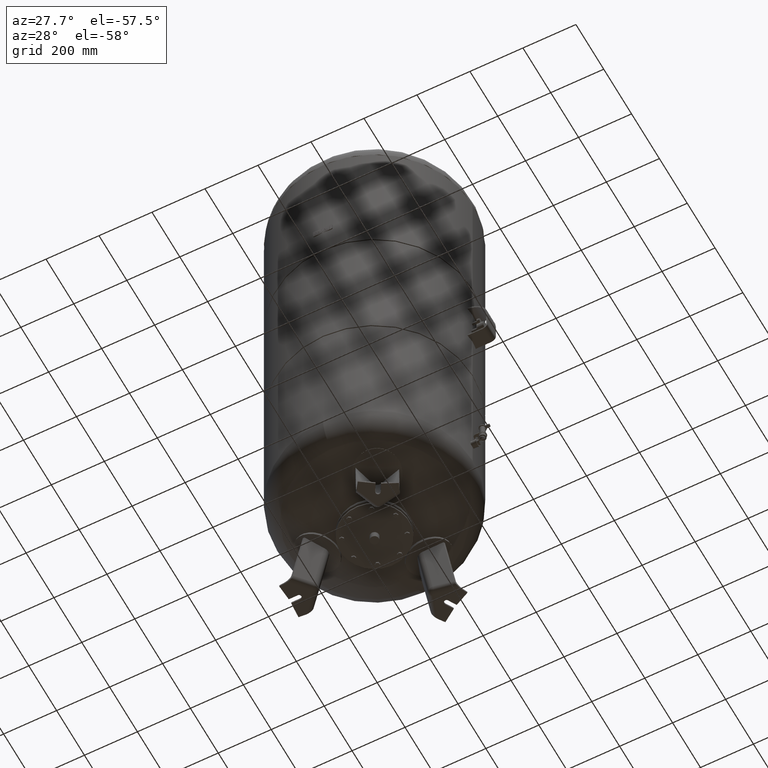
[diagram: clean part render]
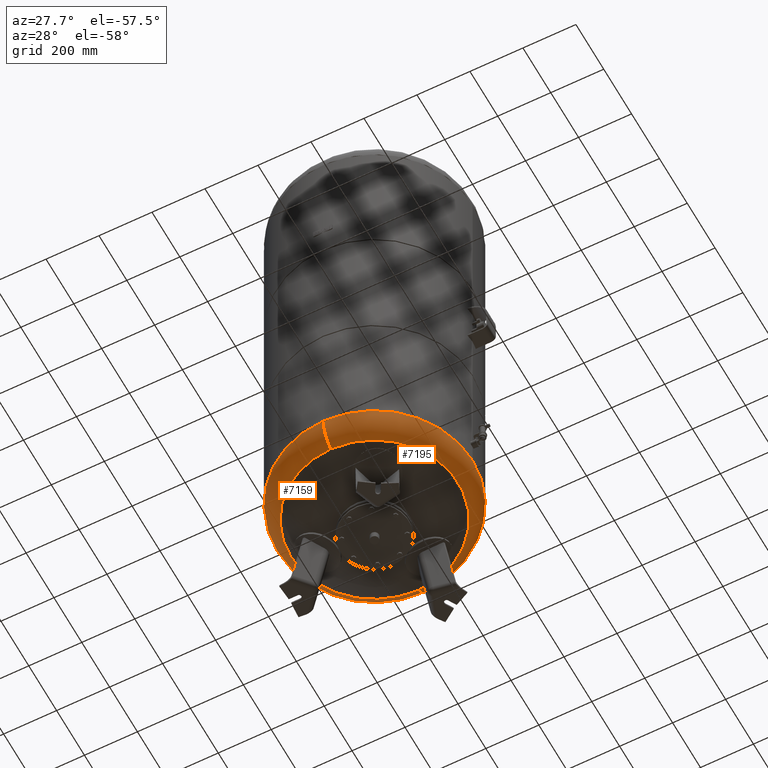
[diagram: same view with one multi-face feature highlighted, each face labeled with its STEP entity id]
A machine part, auxiliary view. The highlighted faces form ONE feature: a constant-radius fillet chain: 2 tangent blend faces with common blend radius 115.5 mm. The faces share edges in the B-rep.
Their STEP definitions:
[1] entity #7159 (Torus):
#7064=CARTESIAN_POINT('',(-370.0,-3.468087E-014,372.793879611869560));
#7065=VERTEX_POINT('',#7064);
#7089=CARTESIAN_POINT('',(-4.531044E-014,369.999999999999940,372.793879611869610));
#7090=VERTEX_POINT('',#7089);
#7098=CARTESIAN_POINT('',(0.0,-3.468087E-014,372.793879611869560));
#7099=DIRECTION('',(0.0,0.0,1.0));
#7100=DIRECTION('',(-1.0,0.0,0.0));
#7101=AXIS2_PLACEMENT_3D('',#7098,#7099,#7100);
#7102=CIRCLE('',#7101,370.0);
#7103=EDGE_CURVE('',#7090,#7065,#7102,.T.);
#7108=CARTESIAN_POINT('',(0.0,-3.468087E-014,372.793879611869560));
#7109=DIRECTION('',(0.0,-1.836970E-016,1.0));
#7110=DIRECTION('',(0.0,-1.0,0.0));
#7111=AXIS2_PLACEMENT_3D('',#7108,#7109,#7110);
#7112=TOROIDAL_SURFACE('',#7111,254.500000000000030,115.500000000000000);
#7113=CARTESIAN_POINT('',(0.0,-370.000000000000060,372.793879611869500));
#7114=VERTEX_POINT('',#7113);
#7115=CARTESIAN_POINT('',(0.0,-315.931034482758610,274.985505725079410));
#7116=VERTEX_POINT('',#7115);
#7117=CARTESIAN_POINT('',(0.0,-254.500000000000060,372.793879611869500));
#7118=DIRECTION('',(1.0,0.0,0.0));
#7119=DIRECTION('',(0.0,-1.0,0.0));
#7120=AXIS2_PLACEMENT_3D('',#7117,#7118,#7119);
#7121=CIRCLE('',#7120,115.500000000000000);
#7122=EDGE_CURVE('',#7114,#7116,#7121,.T.);
#7123=ORIENTED_EDGE('',*,*,#7122,.F.);
#7124=CARTESIAN_POINT('',(0.0,-3.468087E-014,372.793879611869560));
#7125=DIRECTION('',(0.0,0.0,1.0));
#7126=DIRECTION('',(-1.0,0.0,0.0));
#7127=AXIS2_PLACEMENT_3D('',#7124,#7125,#7126);
#7128=CIRCLE('',#7127,370.0);
#7129=EDGE_CURVE('',#7065,#7114,#7128,.T.);
#7130=ORIENTED_EDGE('',*,*,#7129,.F.);
#7131=ORIENTED_EDGE('',*,*,#7103,.F.);
#7132=CARTESIAN_POINT('',(-3.868912E-014,315.931034482758610,274.985505725079630));
#7133=VERTEX_POINT('',#7132);
#7134=CARTESIAN_POINT('',(-3.116623E-014,254.500000000000000,372.793879611869610));
#7135=DIRECTION('',(-1.0,0.0,0.0));
#7136=DIRECTION('',(0.0,1.0,0.0));
#7137=AXIS2_PLACEMENT_3D('',#7134,#7135,#7136);
#7138=CIRCLE('',#7137,115.500000000000000);
#7139=EDGE_CURVE('',#7090,#7133,#7138,.T.);
#7140=ORIENTED_EDGE('',*,*,#7139,.T.);
#7141=CARTESIAN_POINT('',(-315.931034482758610,-1.671377E-014,274.985505725079520));
#7142=VERTEX_POINT('',#7141);
#7143=CARTESIAN_POINT('',(0.0,-1.671377E-014,274.985505725079520));
#7144=DIRECTION('',(0.0,0.0,1.0));
#7145=DIRECTION('',(-1.0,0.0,0.0));
#7146=AXIS2_PLACEMENT_3D('',#7143,#7144,#7145);
#7147=CIRCLE('',#7146,315.931034482758610);
#7148=EDGE_CURVE('',#7133,#7142,#7147,.T.);
#7149=ORIENTED_EDGE('',*,*,#7148,.T.);
#7150=CARTESIAN_POINT('',(0.0,-1.671377E-014,274.985505725079520));
#7151=DIRECTION('',(0.0,0.0,1.0));
#7152=DIRECTION('',(-1.0,0.0,0.0));
#7153=AXIS2_PLACEMENT_3D('',#7150,#7151,#7152);
#7154=CIRCLE('',#7153,315.931034482758610);
#7155=EDGE_CURVE('',#7142,#7116,#7154,.T.);
#7156=ORIENTED_EDGE('',*,*,#7155,.T.);
#7157=EDGE_LOOP('',(#7123,#7130,#7131,#7140,#7149,#7156));
#7158=FACE_OUTER_BOUND('',#7157,.T.);
#7159=ADVANCED_FACE('',(#7158),#7112,.T.);
[2] entity #7195 (Torus):
#7081=CARTESIAN_POINT('',(370.0,1.062956E-014,372.793879611869560));
#7082=VERTEX_POINT('',#7081);
#7089=CARTESIAN_POINT('',(-4.531044E-014,369.999999999999940,372.793879611869610));
#7090=VERTEX_POINT('',#7089);
#7091=CARTESIAN_POINT('',(0.0,-3.468087E-014,372.793879611869560));
#7092=DIRECTION('',(0.0,0.0,1.0));
#7093=DIRECTION('',(-1.0,0.0,0.0));
#7094=AXIS2_PLACEMENT_3D('',#7091,#7092,#7093);
#7095=CIRCLE('',#7094,370.0);
#7096=EDGE_CURVE('',#7082,#7090,#7095,.T.);
#7113=CARTESIAN_POINT('',(0.0,-370.000000000000060,372.793879611869500));
#7114=VERTEX_POINT('',#7113);
#7115=CARTESIAN_POINT('',(0.0,-315.931034482758610,274.985505725079410));
#7116=VERTEX_POINT('',#7115);
#7117=CARTESIAN_POINT('',(0.0,-254.500000000000060,372.793879611869500));
#7118=DIRECTION('',(1.0,0.0,0.0));
#7119=DIRECTION('',(0.0,-1.0,0.0));
#7120=AXIS2_PLACEMENT_3D('',#7117,#7118,#7119);
#7121=CIRCLE('',#7120,115.500000000000000);
#7122=EDGE_CURVE('',#7114,#7116,#7121,.T.);
#7132=CARTESIAN_POINT('',(-3.868912E-014,315.931034482758610,274.985505725079630));
#7133=VERTEX_POINT('',#7132);
#7134=CARTESIAN_POINT('',(-3.116623E-014,254.500000000000000,372.793879611869610));
#7135=DIRECTION('',(-1.0,0.0,0.0));
#7136=DIRECTION('',(0.0,1.0,0.0));
#7137=AXIS2_PLACEMENT_3D('',#7134,#7135,#7136);
#7138=CIRCLE('',#7137,115.500000000000000);
#7139=EDGE_CURVE('',#7090,#7133,#7138,.T.);
#7167=CARTESIAN_POINT('',(0.0,-1.671377E-014,274.985505725079520));
#7168=DIRECTION('',(0.0,0.0,1.0));
#7169=DIRECTION('',(-1.0,0.0,0.0));
#7170=AXIS2_PLACEMENT_3D('',#7167,#7168,#7169);
#7171=CIRCLE('',#7170,315.931034482758610);
#7172=EDGE_CURVE('',#7116,#7133,#7171,.T.);
#7177=CARTESIAN_POINT('',(0.0,-3.468087E-014,372.793879611869560));
#7178=DIRECTION('',(0.0,-1.836970E-016,1.0));
#7179=DIRECTION('',(0.0,-1.0,0.0));
#7180=AXIS2_PLACEMENT_3D('',#7177,#7178,#7179);
#7181=TOROIDAL_SURFACE('',#7180,254.500000000000030,115.500000000000000);
#7182=ORIENTED_EDGE('',*,*,#7122,.T.);
#7183=ORIENTED_EDGE('',*,*,#7172,.T.);
#7184=ORIENTED_EDGE('',*,*,#7139,.F.);
#7185=ORIENTED_EDGE('',*,*,#7096,.F.);
#7186=CARTESIAN_POINT('',(0.0,-3.468087E-014,372.793879611869560));
#7187=DIRECTION('',(0.0,0.0,1.0));
#7188=DIRECTION('',(-1.0,0.0,0.0));
#7189=AXIS2_PLACEMENT_3D('',#7186,#7187,#7188);
#7190=CIRCLE('',#7189,370.0);
#7191=EDGE_CURVE('',#7114,#7082,#7190,.T.);
#7192=ORIENTED_EDGE('',*,*,#7191,.F.);
#7193=EDGE_LOOP('',(#7182,#7183,#7184,#7185,#7192));
#7194=FACE_OUTER_BOUND('',#7193,.T.);
#7195=ADVANCED_FACE('',(#7194),#7181,.T.);